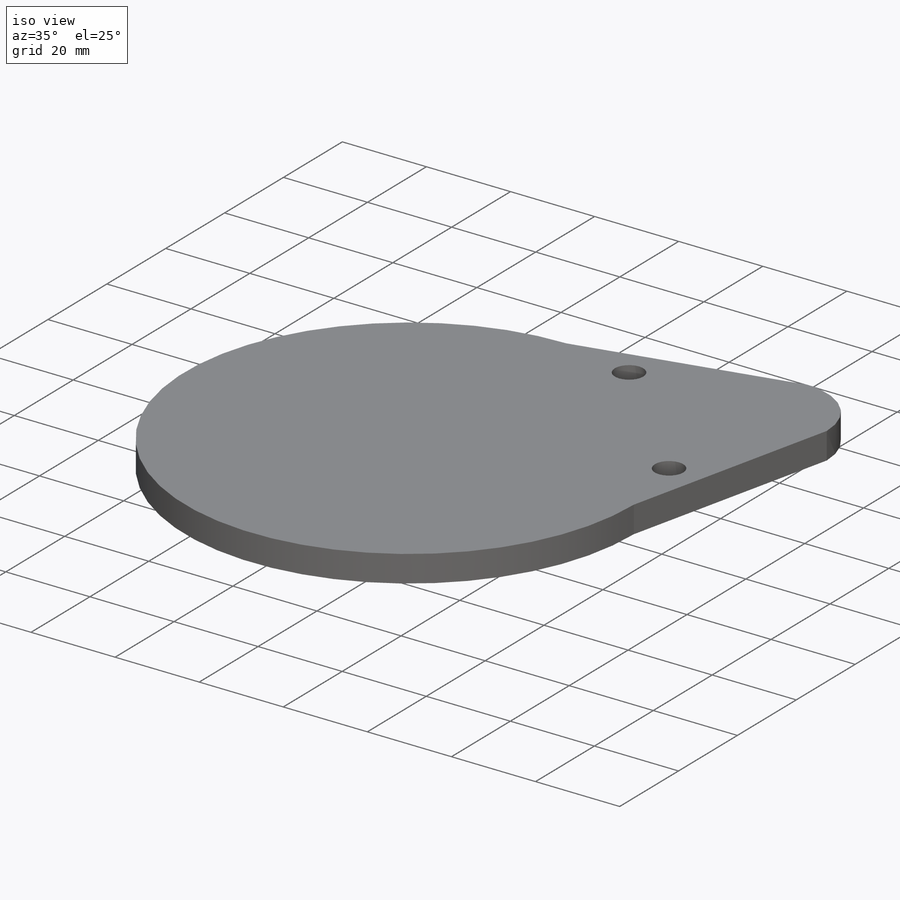
[diagram: iso view]
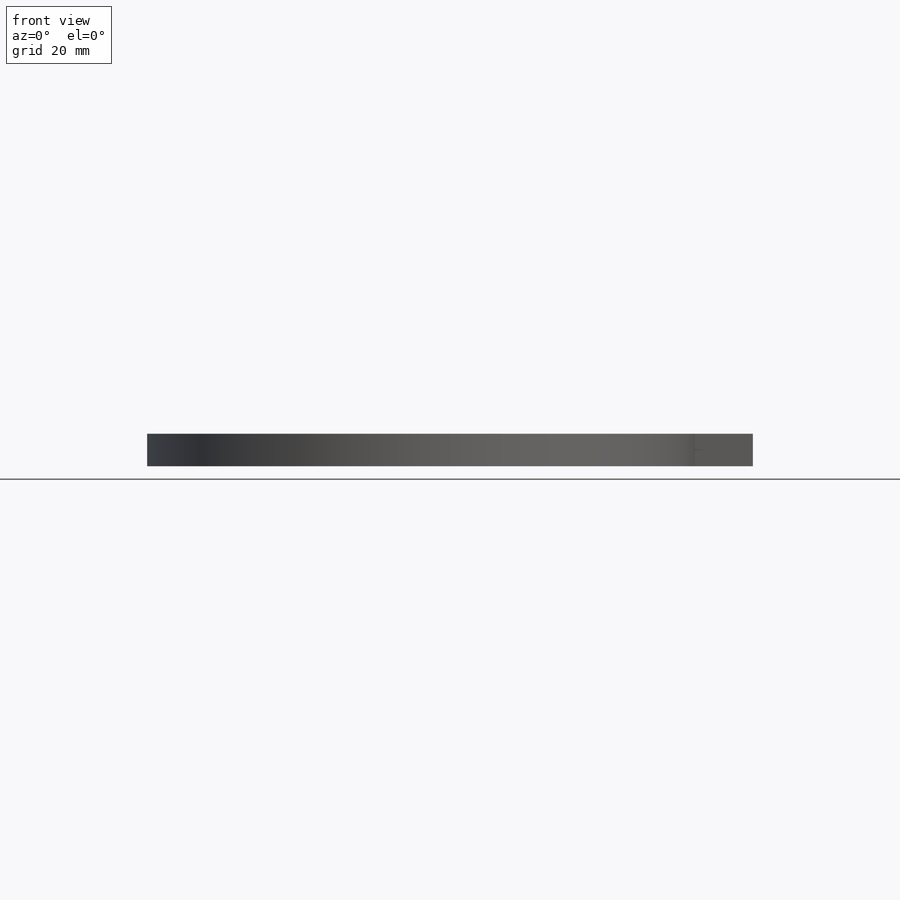
[diagram: front view]
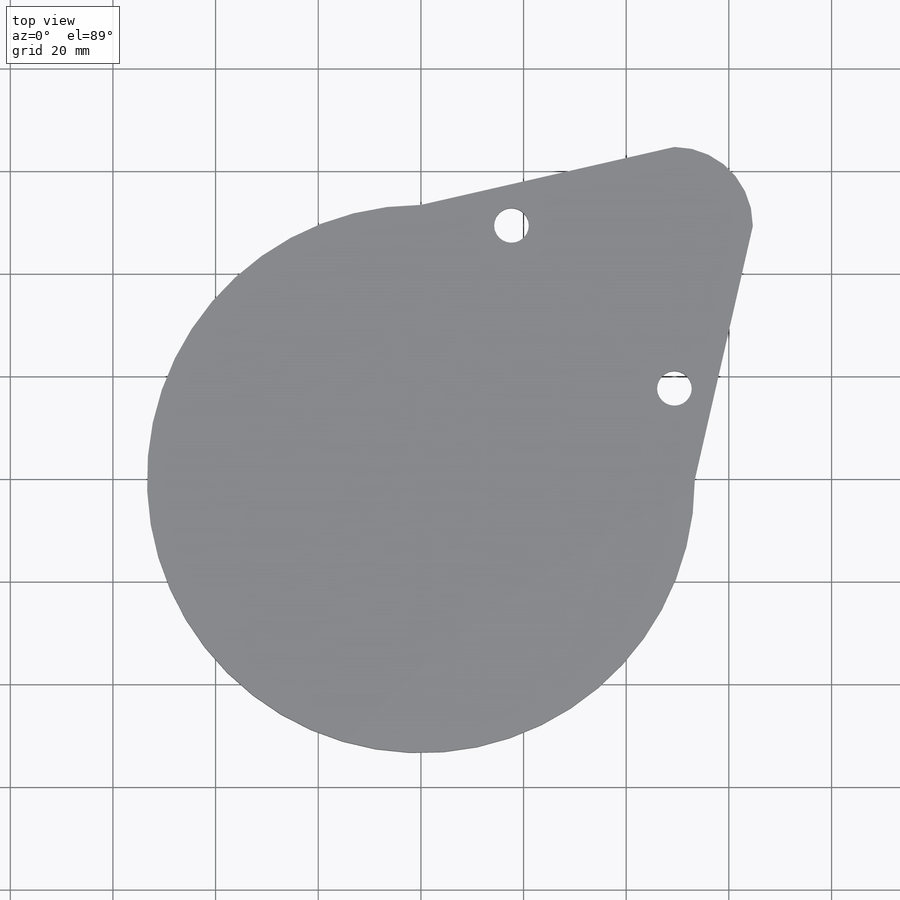
[diagram: top view]
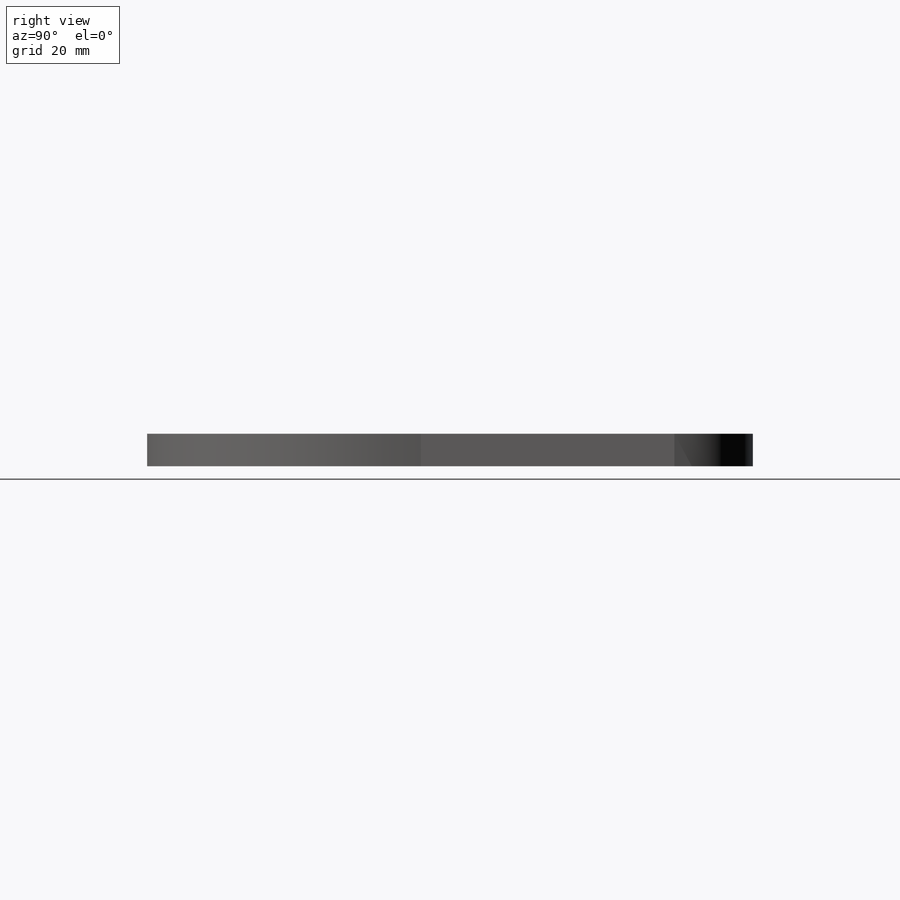
[diagram: right view]
SOLIDWORKS PART (.sldprt)
format: sldprt  version: not decoded by parser v0  size: 512,512 bytes
history: native  units: mm
features: sketch x7, extrude x3, cut_extrude x2, material x1, hole x1 (+11 scaffold rows collapsed)
feature tree (25):
  scaffold x11  (default folders/planes/origin — collapsed)
  material  "6061-T6 (SS)"
  sketch  "Sketch1"  dims[c1.D1=101.6762mm c1.D2=25.4762mm c2.D1=53.3781mm c2.D2=45.0deg c3.D2=76.2mm c3.D3=69.85mm c3.D4=2.54mm]
  extrude  "Boss-Extrude1"  Depth=6.35mm
  sketch  "Sketch3"  dims[c1.D1=88.9762mm c1.D2=25.4762mm c2.D2=45.0deg c3.D2=69.85mm]
  cut_extrude  "Cut-Extrude1"  [1 undecoded]
  sketch  "Sketch8"  dims[D1=101.6762mm D2=25.4762mm]
  cut_extrude  "Cut-Extrude2"  Depth=3.175mm
  hole  "1/4 Clearance Hole1"  Diameter=6.7564mm Depth=25.4mm
  sketch  "Sketch10"  dims[D1=31.75mm D2=31.75mm]
  sketch  "Sketch9"  dims[hole-wizard template sketch: 50 standard entries collapsed; hole parameters above]
  sketch  "Sketch11"
  extrude  "Boss-Extrude3"  Depth=3.175mm
  sketch  "Sketch12"
  extrude  "Boss-Extrude4"  Depth=3.175mm
decode coverage: 10 of 13 modeling features carry decoded parameters
note: ~ marks probable driven/reference dimensions
note: 1 parameter value undecoded
note: suppression state not decoded; provenance and decode notes live in map.json
